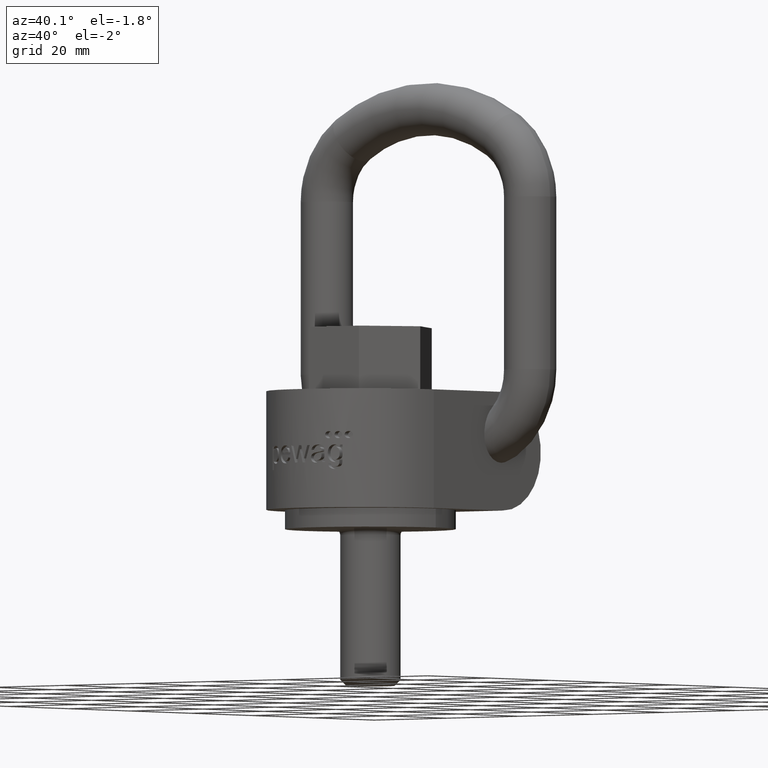
[diagram: clean part render]
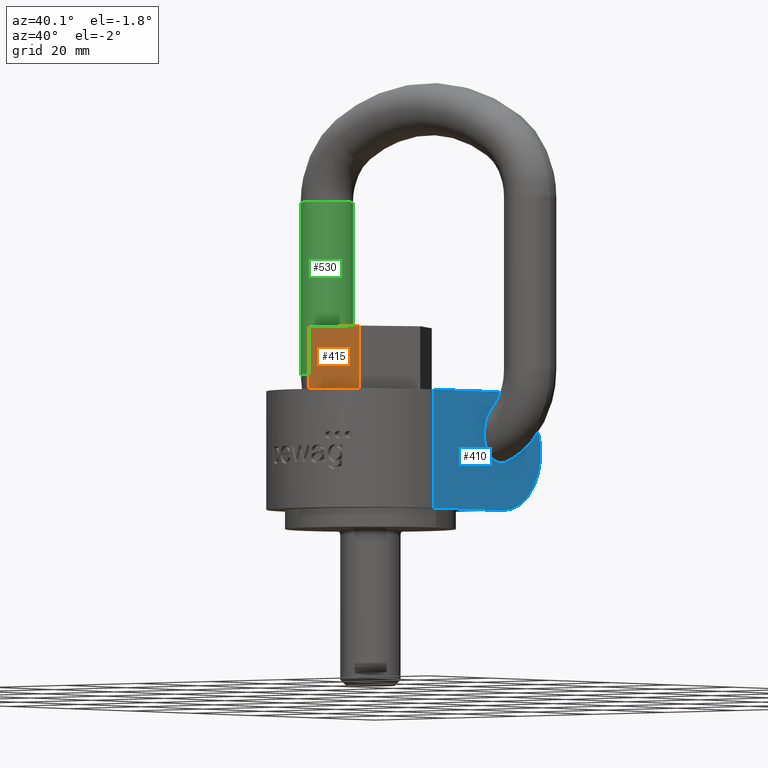
[diagram: same view with three faces highlighted in distinct colors, each labeled with its STEP entity id]
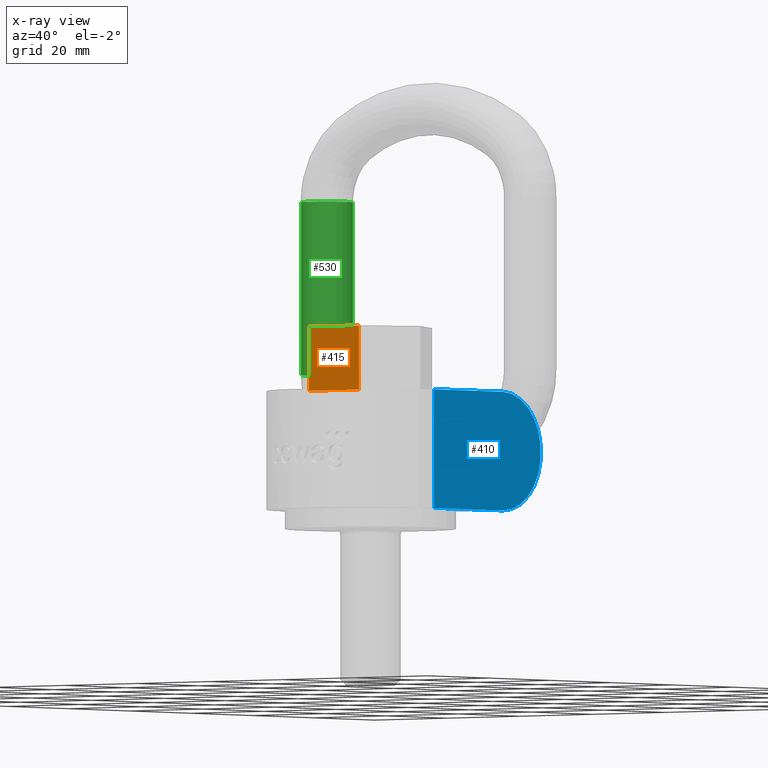
[diagram: x-ray of the same camera — body ghosted, the three highlighted faces saturated]
A machine part, auxiliary view with three faces highlighted in distinct colors.
The next image is the same camera in x-ray (body ghosted, the three faces saturated) — at least one of them is partly hidden behind the body in this view.
Their STEP definitions:

[orange] entity #415 — the highlighted planar face has unit normal (0, 1, 0).
#248=FACE_OUTER_BOUND('',#646,.T.);
#353=PLANE('',#2461);
#415=ADVANCED_FACE('',(#248),#353,.F.);
#646=EDGE_LOOP('',(#1228,#1229,#1230,#1231));
#804=LINE('',#3832,#930);
#805=LINE('',#3834,#931);
#808=LINE('',#3840,#934);
#809=LINE('',#3842,#935);
#930=VECTOR('',#2653,1.);
#931=VECTOR('',#2656,1.);
#934=VECTOR('',#2661,1.);
#935=VECTOR('',#2662,1.);
#1228=ORIENTED_EDGE('',*,*,#2027,.T.);
#1229=ORIENTED_EDGE('',*,*,#2031,.F.);
#1230=ORIENTED_EDGE('',*,*,#2032,.F.);
#1231=ORIENTED_EDGE('',*,*,#2028,.T.);
#1809=VERTEX_POINT('',#3823);
#1813=VERTEX_POINT('',#3831);
#1814=VERTEX_POINT('',#3835);
#1816=VERTEX_POINT('',#3841);
#2027=EDGE_CURVE('',#1809,#1813,#804,.T.);
#2028=EDGE_CURVE('',#1814,#1809,#805,.T.);
#2031=EDGE_CURVE('',#1816,#1813,#808,.T.);
#2032=EDGE_CURVE('',#1814,#1816,#809,.T.);
#2461=AXIS2_PLACEMENT_3D('',#3843,#2663,#2664);
#2653=DIRECTION('',(1.,-1.26191902455872E-16,0.));
#2656=DIRECTION('',(0.,0.,-1.));
#2661=DIRECTION('',(0.,0.,-1.));
#2662=DIRECTION('',(1.,-1.26191902455872E-16,0.));
#2663=DIRECTION('',(1.26191902455872E-16,1.,0.));
#2664=DIRECTION('',(-1.,1.26634813746307E-16,0.));
#3823=CARTESIAN_POINT('',(-6.8733549547025,-11.905,25.));
#3831=CARTESIAN_POINT('',(6.87335495470249,-11.905,25.));
#3832=CARTESIAN_POINT('',(-6.87335495470249,-11.905,25.));
#3834=CARTESIAN_POINT('',(-6.8733549547025,-11.905,38.5));
#3835=CARTESIAN_POINT('',(-6.8733549547025,-11.905,38.5));
#3840=CARTESIAN_POINT('',(6.87335495470249,-11.905,38.5));
#3841=CARTESIAN_POINT('',(6.87335495470249,-11.905,38.5));
#3842=CARTESIAN_POINT('',(-6.87335495470249,-11.905,38.5));
#3843=CARTESIAN_POINT('',(-6.87335495470249,-11.905,38.5));

[blue] entity #410 — the highlighted planar face has unit normal (1, 0, 0).
#245=FACE_OUTER_BOUND('',#639,.T.);
#349=PLANE('',#2455);
#410=ADVANCED_FACE('',(#245),#349,.T.);
#639=EDGE_LOOP('',(#1207,#1208,#1209,#1210));
#791=LINE('',#3673,#917);
#793=LINE('',#3797,#919);
#796=LINE('',#3805,#922);
#917=VECTOR('',#2614,1.);
#919=VECTOR('',#2620,1.);
#922=VECTOR('',#2627,1.);
#1104=CIRCLE('',#2453,12.505);
#1207=ORIENTED_EDGE('',*,*,#2015,.T.);
#1208=ORIENTED_EDGE('',*,*,#2006,.T.);
#1209=ORIENTED_EDGE('',*,*,#2011,.T.);
#1210=ORIENTED_EDGE('',*,*,#2020,.T.);
#1795=VERTEX_POINT('',#3671);
#1797=VERTEX_POINT('',#3674);
#1801=VERTEX_POINT('',#3798);
#1804=VERTEX_POINT('',#3806);
#2006=EDGE_CURVE('',#1797,#1795,#791,.T.);
#2011=EDGE_CURVE('',#1795,#1801,#793,.T.);
#2015=EDGE_CURVE('',#1804,#1797,#796,.T.);
#2020=EDGE_CURVE('',#1801,#1804,#1104,.T.);
#2453=AXIS2_PLACEMENT_3D('',#3814,#2636,#2637);
#2455=AXIS2_PLACEMENT_3D('',#3816,#2640,#2641);
#2614=DIRECTION('',(0.,0.,-1.));
#2620=DIRECTION('',(0.,1.,1.14897503733909E-16));
#2627=DIRECTION('',(0.,-1.,3.26574604254958E-16));
#2636=DIRECTION('',(1.,0.,0.));
#2637=DIRECTION('',(0.,1.,0.));
#2640=DIRECTION('',(1.,0.,0.));
#2641=DIRECTION('',(0.,0.,-1.));
#3671=CARTESIAN_POINT('',(20.,-3.00000000000001,9.23098548293064E-16));
#3673=CARTESIAN_POINT('',(20.,-3.00000000000001,0.));
#3674=CARTESIAN_POINT('',(20.,-3.00000000000001,25.01));
#3797=CARTESIAN_POINT('',(20.,-23.,-1.37485152638513E-15));
#3798=CARTESIAN_POINT('',(20.,19.495,3.50771789478736E-15));
#3805=CARTESIAN_POINT('',(20.,19.495,25.01));
#3806=CARTESIAN_POINT('',(20.,19.495,25.01));
#3814=CARTESIAN_POINT('',(20.,19.495,12.505));
#3816=CARTESIAN_POINT('',(20.,19.495,12.505));

[green] entity #530 — the highlighted cylindrical surface (bore or boss wall) has radius 5.5 mm, axis along (-0, 0, -1).
#530=ADVANCED_FACE('',(#615,#616),#551,.T.);
#551=CYLINDRICAL_SURFACE('',#2542,5.5);
#615=FACE_BOUND('',#777,.T.);
#616=FACE_BOUND('',#778,.T.);
#777=EDGE_LOOP('',(#1718));
#778=EDGE_LOOP('',(#1719));
#1115=CIRCLE('',#2539,5.5);
#1116=CIRCLE('',#2541,5.5);
#1718=ORIENTED_EDGE('',*,*,#2238,.T.);
#1719=ORIENTED_EDGE('',*,*,#2237,.F.);
#1933=VERTEX_POINT('',#5187);
#1934=VERTEX_POINT('',#5190);
#2237=EDGE_CURVE('',#1933,#1933,#1115,.T.);
#2238=EDGE_CURVE('',#1934,#1934,#1116,.T.);
#2539=AXIS2_PLACEMENT_3D('',#5186,#2967,#2968);
#2541=AXIS2_PLACEMENT_3D('',#5189,#2971,#2972);
#2542=AXIS2_PLACEMENT_3D('',#5191,#2973,#2974);
#2967=DIRECTION('',(3.33066907387547E-16,0.,-1.));
#2968=DIRECTION('',(-1.,0.,-6.30808536718839E-16));
#2971=DIRECTION('',(3.33066907387547E-16,0.,-1.));
#2972=DIRECTION('',(-1.,0.,0.));
#2973=DIRECTION('',(-9.76026978639077E-17,0.,-1.));
#2974=DIRECTION('',(-1.,0.,0.));
#5186=CARTESIAN_POINT('',(-28.,19.,29.5));
#5187=CARTESIAN_POINT('',(-33.5,19.,29.5));
#5189=CARTESIAN_POINT('',(-28.,19.,65.8997487421324));
#5190=CARTESIAN_POINT('',(-33.5,19.,65.8997487421324));
#5191=CARTESIAN_POINT('',(-28.,19.,65.8997487421324));